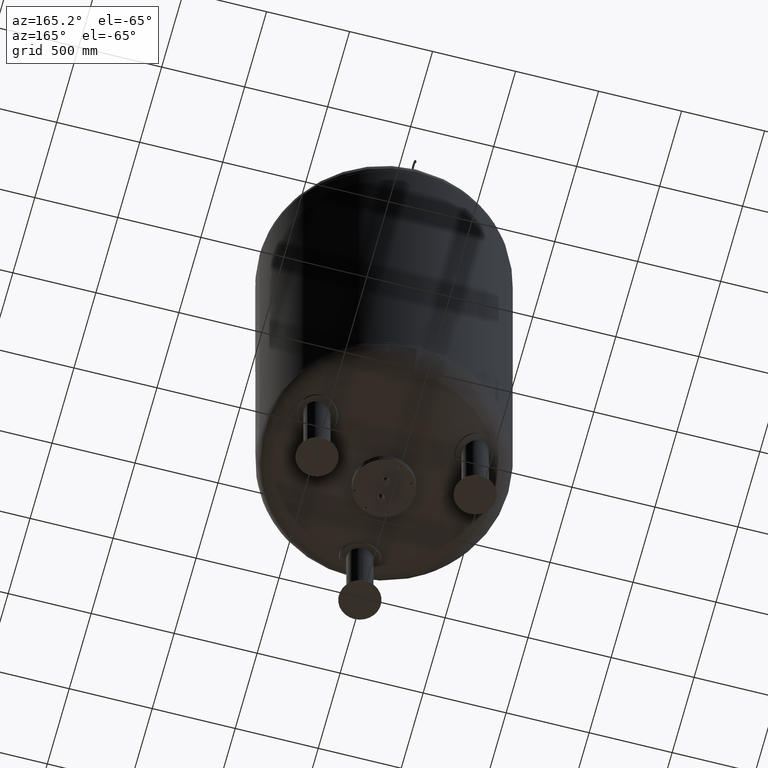
[diagram: clean part render]
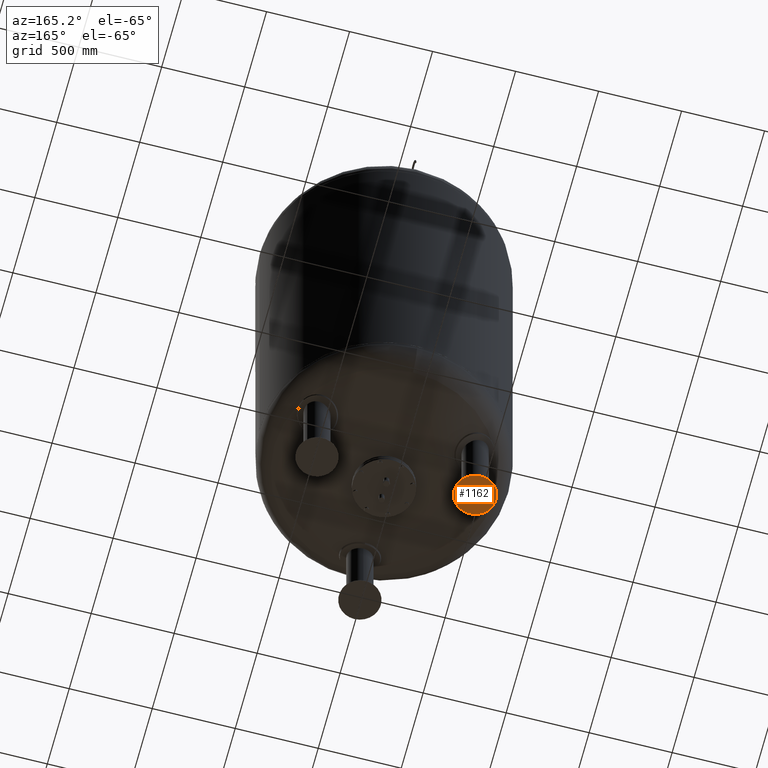
[diagram: same view with one face highlighted and labeled with its STEP entity id]
A machine part, auxiliary view. The second image highlights one B-rep face of the part: STEP entity #1162.
In plain terms, the highlighted spherical surface has radius 570 mm.
Its self-contained STEP definition (entity closure, byte-faithful):
#650=CARTESIAN_POINT('',(-585.702740850055990,338.155635094881520,14.171372612881115));
#651=VERTEX_POINT('',#650);
#660=CARTESIAN_POINT('',(-366.925203312826340,211.844364905118570,14.171372612881109));
#661=VERTEX_POINT('',#660);
#662=CARTESIAN_POINT('',(-476.313972081441140,275.000000000000060,14.171372612881115));
#663=DIRECTION('',(0.0,0.0,-1.0));
#664=DIRECTION('',(-0.866025403784439,0.500000000000000,0.0));
#665=AXIS2_PLACEMENT_3D('',#662,#663,#664);
#666=CIRCLE('',#665,126.311270189762990);
#667=EDGE_CURVE('',#661,#651,#666,.T.);
#1143=CARTESIAN_POINT('',(-476.313972081441140,275.000000000000060,14.171372612881115));
#1144=DIRECTION('',(0.0,0.0,-1.0));
#1145=DIRECTION('',(-0.866025403784439,0.500000000000000,0.0));
#1146=AXIS2_PLACEMENT_3D('',#1143,#1144,#1145);
#1147=CIRCLE('',#1146,126.311270189762990);
#1148=EDGE_CURVE('',#651,#661,#1147,.T.);
#1153=CARTESIAN_POINT('',(-476.313972081441080,275.000000000000170,570.0));
#1154=DIRECTION('',(0.500000000000000,0.866025403784439,-1.836970E-016));
#1155=DIRECTION('',(-0.866025403784439,0.500000000000000,0.0));
#1156=AXIS2_PLACEMENT_3D('',#1153,#1154,#1155);
#1157=SPHERICAL_SURFACE('',#1156,570.0);
#1158=ORIENTED_EDGE('',*,*,#1148,.T.);
#1159=ORIENTED_EDGE('',*,*,#667,.T.);
#1160=EDGE_LOOP('',(#1158,#1159));
#1161=FACE_OUTER_BOUND('',#1160,.T.);
#1162=ADVANCED_FACE('',(#1161),#1157,.T.);